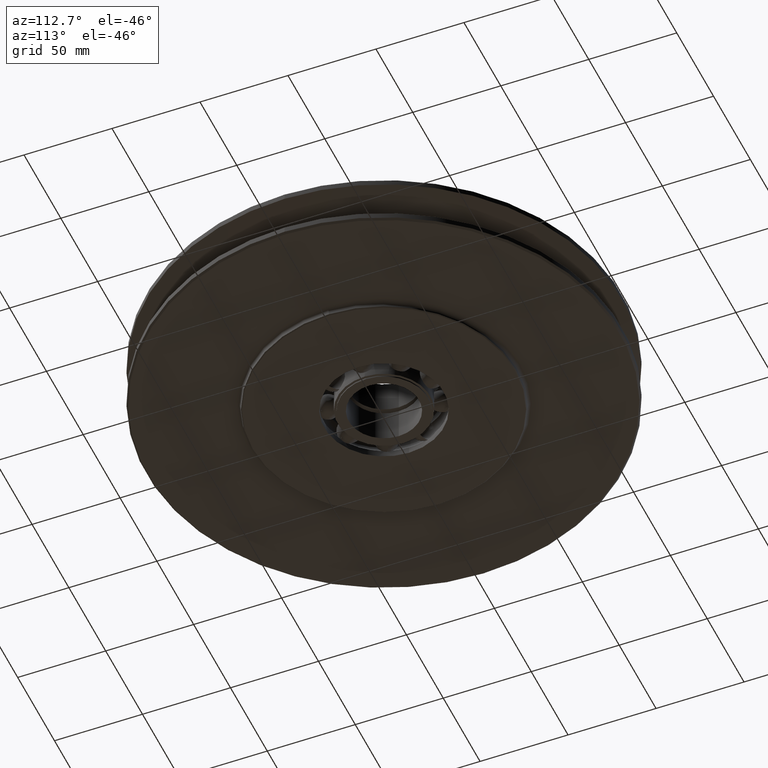
[diagram: clean part render]
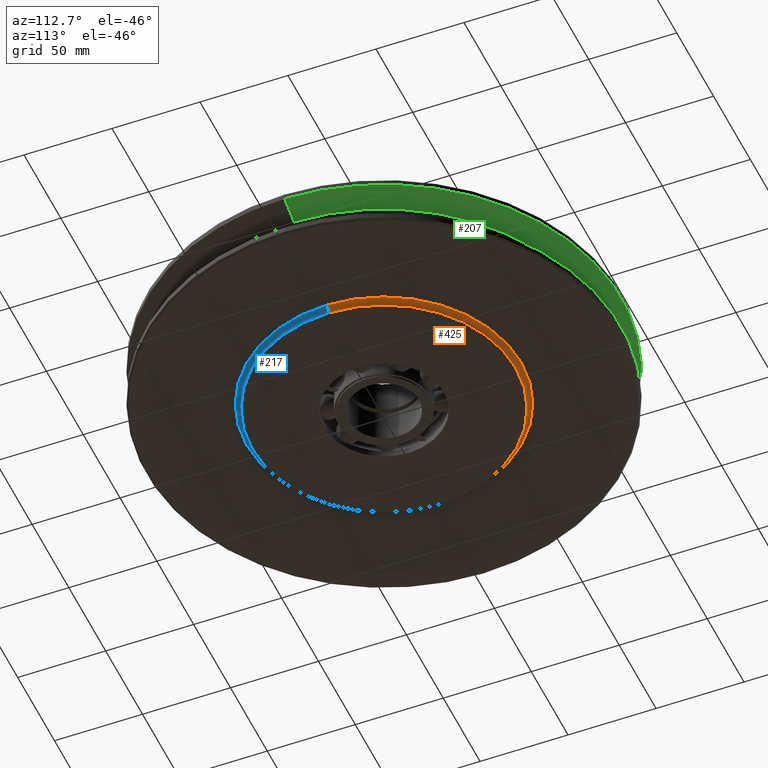
[diagram: same view with three faces highlighted in distinct colors, each labeled with its STEP entity id]
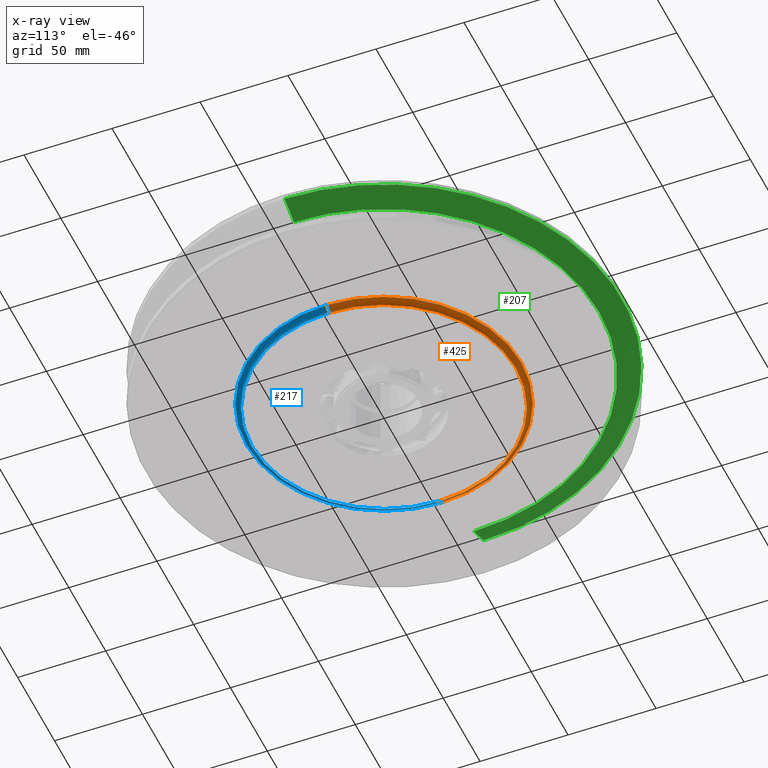
[diagram: x-ray of the same camera — body ghosted, the three highlighted faces saturated]
A machine part, auxiliary view with three faces highlighted in distinct colors.
The next image is the same camera in x-ray (body ghosted, the three faces saturated) — at least one of them is partly hidden behind the body in this view.
Their STEP definitions:

[orange] entity #425 — the highlighted toroidal blend (fillet) surface has major radius 78 mm and minor (blend) radius 3 mm.
#425=ADVANCED_FACE('',(#877),#878,.F.);
#877=FACE_OUTER_BOUND('',#1327,.T.);
#878=TOROIDAL_SURFACE('',#1328,78.0,2.99999999999999);
#1327=EDGE_LOOP('',(#2759,#2760,#2761,#2762));
#1328=AXIS2_PLACEMENT_3D('',#2763,#2764,#2765);
#2759=ORIENTED_EDGE('',*,*,#2943,.T.);
#2760=ORIENTED_EDGE('',*,*,#3399,.F.);
#2761=ORIENTED_EDGE('',*,*,#2945,.T.);
#2762=ORIENTED_EDGE('',*,*,#2951,.T.);
#2763=CARTESIAN_POINT('',(0.0,0.0,-18.0));
#2764=DIRECTION('',(0.0,0.0,1.0));
#2765=DIRECTION('',(1.0,0.0,0.0));
#2943=EDGE_CURVE('',#3628,#3629,#3630,.T.);
#2945=EDGE_CURVE('',#3633,#3631,#3634,.T.);
#2951=EDGE_CURVE('',#3631,#3628,#3642,.T.);
#3399=EDGE_CURVE('',#3633,#3629,#4304,.T.);
#3628=VERTEX_POINT('',#6053);
#3629=VERTEX_POINT('',#6054);
#3630=CIRCLE('',#6055,2.99999999999999);
#3631=VERTEX_POINT('',#6056);
#3633=VERTEX_POINT('',#6058);
#3634=CIRCLE('',#6059,2.99999999999999);
#3642=CIRCLE('',#6069,75.0);
#4304=CIRCLE('',#10419,78.0);
#6053=CARTESIAN_POINT('',(-75.0,9.18485099360515E-015,-18.0));
#6054=CARTESIAN_POINT('',(-78.0,9.55224503334935E-015,-15.0));
#6055=AXIS2_PLACEMENT_3D('',#10606,#10607,#10608);
#6056=CARTESIAN_POINT('',(75.0,0.0,-18.0));
#6058=CARTESIAN_POINT('',(78.0,0.0,-15.0));
#6059=AXIS2_PLACEMENT_3D('',#10612,#10613,#10614);
#6069=AXIS2_PLACEMENT_3D('',#10623,#10624,#10625);
#10419=AXIS2_PLACEMENT_3D('',#11104,#11105,#11106);
#10606=CARTESIAN_POINT('',(-78.0,9.55224503334935E-015,-18.0));
#10607=DIRECTION('',(-1.22464679914735E-016,-1.0,0.0));
#10608=DIRECTION('',(-1.0,1.22464679914735E-016,-0.0));
#10612=CARTESIAN_POINT('',(78.0,-9.55224503334935E-015,-18.0));
#10613=DIRECTION('',(-1.22464679914735E-016,-1.0,0.0));
#10614=DIRECTION('',(1.0,-1.22464679914735E-016,0.0));
#10623=CARTESIAN_POINT('',(0.0,0.0,-18.0));
#10624=DIRECTION('',(0.0,0.0,1.0));
#10625=DIRECTION('',(1.0,0.0,0.0));
#11104=CARTESIAN_POINT('',(0.0,0.0,-15.0));
#11105=DIRECTION('',(0.0,0.0,1.0));
#11106=DIRECTION('',(1.0,0.0,0.0));

[blue] entity #217 — the highlighted toroidal blend (fillet) surface has major radius 78 mm and minor (blend) radius 3 mm.
#217=ADVANCED_FACE('',(#538),#539,.F.);
#538=FACE_OUTER_BOUND('',#988,.T.);
#539=TOROIDAL_SURFACE('',#989,78.0,2.99999999999999);
#988=EDGE_LOOP('',(#1567,#1568,#1569,#1570));
#989=AXIS2_PLACEMENT_3D('',#1571,#1572,#1573);
#1567=ORIENTED_EDGE('',*,*,#2943,.F.);
#1568=ORIENTED_EDGE('',*,*,#2944,.T.);
#1569=ORIENTED_EDGE('',*,*,#2945,.F.);
#1570=ORIENTED_EDGE('',*,*,#2946,.F.);
#1571=CARTESIAN_POINT('',(0.0,0.0,-18.0));
#1572=DIRECTION('',(0.0,0.0,1.0));
#1573=DIRECTION('',(1.0,0.0,0.0));
#2943=EDGE_CURVE('',#3628,#3629,#3630,.T.);
#2944=EDGE_CURVE('',#3628,#3631,#3632,.T.);
#2945=EDGE_CURVE('',#3633,#3631,#3634,.T.);
#2946=EDGE_CURVE('',#3629,#3633,#3635,.T.);
#3628=VERTEX_POINT('',#6053);
#3629=VERTEX_POINT('',#6054);
#3630=CIRCLE('',#6055,2.99999999999999);
#3631=VERTEX_POINT('',#6056);
#3632=CIRCLE('',#6057,75.0);
#3633=VERTEX_POINT('',#6058);
#3634=CIRCLE('',#6059,2.99999999999999);
#3635=CIRCLE('',#6060,78.0);
#6053=CARTESIAN_POINT('',(-75.0,9.18485099360515E-015,-18.0));
#6054=CARTESIAN_POINT('',(-78.0,9.55224503334935E-015,-15.0));
#6055=AXIS2_PLACEMENT_3D('',#10606,#10607,#10608);
#6056=CARTESIAN_POINT('',(75.0,0.0,-18.0));
#6057=AXIS2_PLACEMENT_3D('',#10609,#10610,#10611);
#6058=CARTESIAN_POINT('',(78.0,0.0,-15.0));
#6059=AXIS2_PLACEMENT_3D('',#10612,#10613,#10614);
#6060=AXIS2_PLACEMENT_3D('',#10615,#10616,#10617);
#10606=CARTESIAN_POINT('',(-78.0,9.55224503334935E-015,-18.0));
#10607=DIRECTION('',(-1.22464679914735E-016,-1.0,0.0));
#10608=DIRECTION('',(-1.0,1.22464679914735E-016,-0.0));
#10609=CARTESIAN_POINT('',(0.0,0.0,-18.0));
#10610=DIRECTION('',(0.0,0.0,1.0));
#10611=DIRECTION('',(1.0,0.0,0.0));
#10612=CARTESIAN_POINT('',(78.0,-9.55224503334935E-015,-18.0));
#10613=DIRECTION('',(-1.22464679914735E-016,-1.0,0.0));
#10614=DIRECTION('',(1.0,-1.22464679914735E-016,0.0));
#10615=CARTESIAN_POINT('',(0.0,0.0,-15.0));
#10616=DIRECTION('',(0.0,0.0,1.0));
#10617=DIRECTION('',(1.0,0.0,0.0));

[green] entity #207 — the highlighted conical surface has half-angle 67.5 deg.
#207=ADVANCED_FACE('',(#523),#524,.T.);
#523=FACE_OUTER_BOUND('',#973,.T.);
#524=CONICAL_SURFACE('',#974,128.6019495,1.17809725041222);
#973=EDGE_LOOP('',(#1527,#1528,#1529,#1530));
#974=AXIS2_PLACEMENT_3D('',#1531,#1532,#1533);
#1527=ORIENTED_EDGE('',*,*,#2922,.F.);
#1528=ORIENTED_EDGE('',*,*,#2818,.T.);
#1529=ORIENTED_EDGE('',*,*,#2923,.F.);
#1530=ORIENTED_EDGE('',*,*,#2924,.F.);
#1531=CARTESIAN_POINT('',(0.0,0.0,8.19343625));
#1532=DIRECTION('',(-0.0,-0.0,1.0));
#1533=DIRECTION('',(1.0,0.0,0.0));
#2818=EDGE_CURVE('',#3416,#3414,#3417,.T.);
#2922=EDGE_CURVE('',#3416,#3597,#3598,.T.);
#2923=EDGE_CURVE('',#3599,#3414,#3600,.T.);
#2924=EDGE_CURVE('',#3597,#3599,#3601,.T.);
#3414=VERTEX_POINT('',#4319);
#3416=VERTEX_POINT('',#4321);
#3417=CIRCLE('',#4322,122.203899);
#3597=VERTEX_POINT('',#6014);
#3598=LINE('',#6015,#6016);
#3599=VERTEX_POINT('',#6017);
#3600=LINE('',#6018,#6019);
#3601=CIRCLE('',#6020,135.0);
#4319=CARTESIAN_POINT('',(-122.203899,1.49656613753676E-014,5.543277));
#4321=CARTESIAN_POINT('',(122.203899,0.0,5.543277));
#4322=AXIS2_PLACEMENT_3D('',#10436,#10437,#10438);
#6014=CARTESIAN_POINT('',(135.0,0.0,10.8435955));
#6015=CARTESIAN_POINT('',(128.6019495,-1.57491965819285E-014,8.19343625));
#6016=VECTOR('',#10574,1.0);
#6017=CARTESIAN_POINT('',(-135.0,1.65327317884893E-014,10.8435955));
#6018=CARTESIAN_POINT('',(-128.6019495,1.57491965819284E-014,8.19343625));
#6019=VECTOR('',#10575,1.0);
#6020=AXIS2_PLACEMENT_3D('',#10576,#10577,#10578);
#10436=CARTESIAN_POINT('',(0.0,0.0,5.543277));
#10437=DIRECTION('',(0.0,0.0,1.0));
#10438=DIRECTION('',(1.0,0.0,0.0));
#10574=DIRECTION('',(0.923879534545651,-1.13142611477908E-016,0.382683427453699));
#10575=DIRECTION('',(0.923879534545651,-1.13142611477908E-016,-0.382683427453699));
#10576=CARTESIAN_POINT('',(0.0,0.0,10.8435955));
#10577=DIRECTION('',(0.0,0.0,1.0));
#10578=DIRECTION('',(1.0,0.0,0.0));